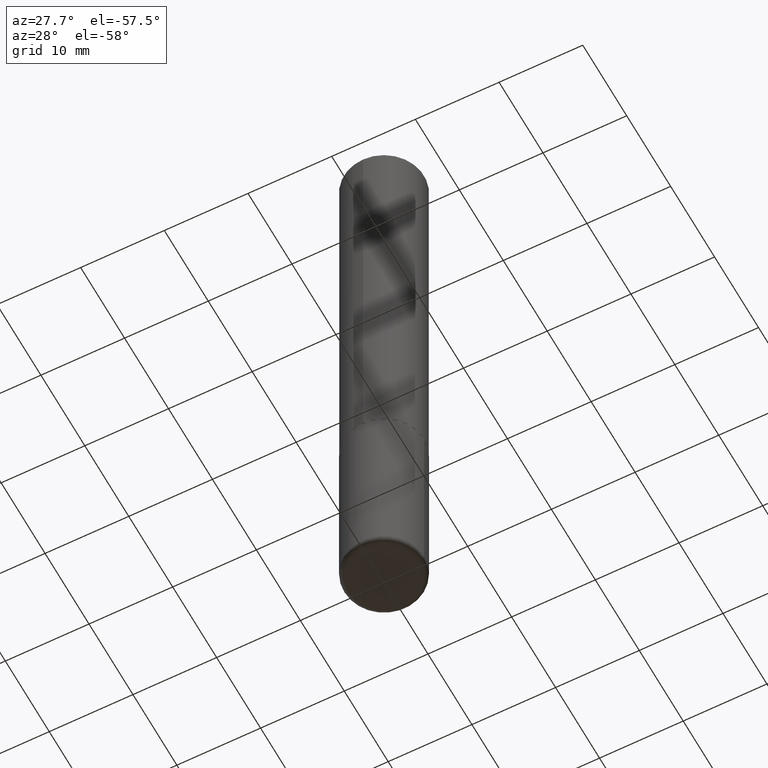
[diagram: clean part render]
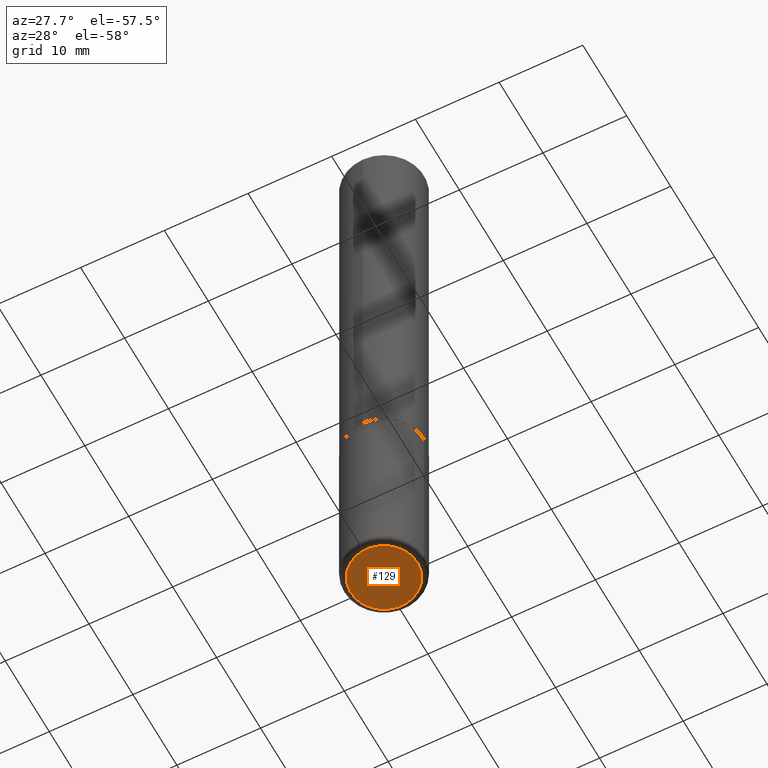
[diagram: same view with one face highlighted and labeled with its STEP entity id]
A machine part, auxiliary view. The second image highlights one B-rep face of the part: STEP entity #129.
In plain terms, the highlighted planar face has unit normal (0, -0, -1).
Its self-contained STEP definition (entity closure, byte-faithful):
#28 = DIRECTION ( 'NONE',  ( -2.445468806185136597E-29, 3.491481338843145583E-15, 1.000000000000000000 ) ) ;
#33 = DIRECTION ( 'NONE',  ( 2.438088387897960049E-29, -3.491481338843145188E-15, -1.000000000000000000 ) ) ;
#101 = CIRCLE ( 'NONE', #124, 0.1575000000000000289 ) ;
#104 = DIRECTION ( 'NONE',  ( 1.000000000000000000, -6.982962677686273810E-15, 0.000000000000000000 ) ) ;
#105 = DIRECTION ( 'NONE',  ( -2.445468806185136597E-29, 3.491481338843145583E-15, 1.000000000000000000 ) ) ;
#109 = CARTESIAN_POINT ( 'NONE',  ( -0.1575000000000000289, -9.196385577260617732E-15, -2.999999999999999556 ) ) ;
#124 = AXIS2_PLACEMENT_3D ( 'NONE', #288, #105, #186 ) ;
#129 = ADVANCED_FACE ( 'NONE', ( #187 ), #189, .T. ) ;
#132 = CARTESIAN_POINT ( 'NONE',  ( 7.336406418555408669E-29, -1.047444401652943478E-14, -2.999999999999999556 ) ) ;
#141 = AXIS2_PLACEMENT_3D ( 'NONE', #132, #28, #104 ) ;
#168 = EDGE_CURVE ( 'NONE', #229, #332, #395, .T. ) ;
#176 = ORIENTED_EDGE ( 'NONE', *, *, #168, .F. ) ;
#186 = DIRECTION ( 'NONE',  ( 1.000000000000000000, -6.982962677686273810E-15, 0.000000000000000000 ) ) ;
#187 = FACE_OUTER_BOUND ( 'NONE', #214, .T. ) ;
#189 = PLANE ( 'NONE',  #350 ) ;
#194 = DIRECTION ( 'NONE',  ( -1.000000000000000000, 6.982962677686265922E-15, -4.876176775795935793E-29 ) ) ;
#214 = EDGE_LOOP ( 'NONE', ( #241, #176 ) ) ;
#216 = CARTESIAN_POINT ( 'NONE',  ( 1.460360359222004371E-28, -6.740404066557149394E-17, -2.999999999999999556 ) ) ;
#228 = EDGE_CURVE ( 'NONE', #332, #229, #101, .T. ) ;
#229 = VERTEX_POINT ( 'NONE', #109 ) ;
#241 = ORIENTED_EDGE ( 'NONE', *, *, #228, .F. ) ;
#288 = CARTESIAN_POINT ( 'NONE',  ( 7.336406418555408669E-29, -1.047444401652943478E-14, -2.999999999999999556 ) ) ;
#332 = VERTEX_POINT ( 'NONE', #364 ) ;
#350 = AXIS2_PLACEMENT_3D ( 'NONE', #216, #33, #194 ) ;
#364 = CARTESIAN_POINT ( 'NONE',  ( 0.1575000000000000289, -1.157426063826502304E-14, -2.999999999999999556 ) ) ;
#395 = CIRCLE ( 'NONE', #141, 0.1575000000000000289 ) ;